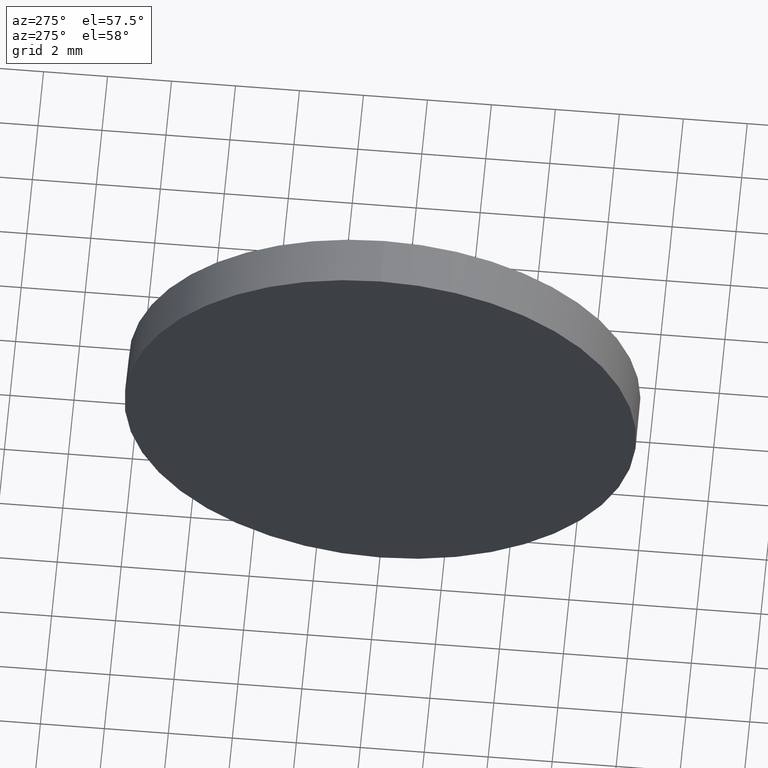
[diagram: clean part render]
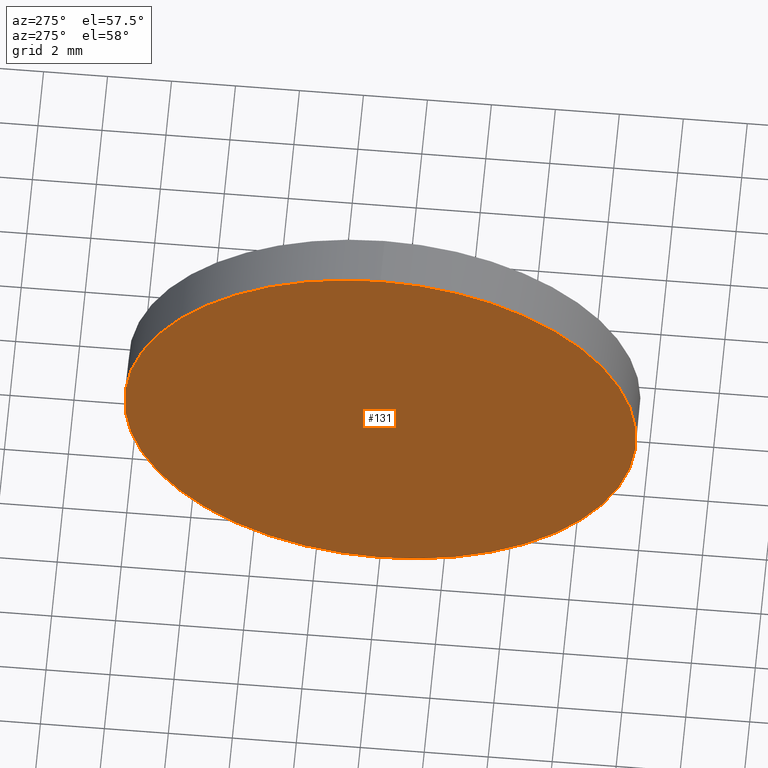
[diagram: same view with one face highlighted and labeled with its STEP entity id]
A machine part, auxiliary view. The second image highlights one B-rep face of the part: STEP entity #131.
In plain terms, the highlighted planar face has unit normal (1, 0, 0).
Its self-contained STEP definition (entity closure, byte-faithful):
#1 = AXIS2_PLACEMENT_3D ( 'NONE', #50, #64, #15 ) ;
#5 = DIRECTION ( 'NONE',  ( 0.0000000000000000000, 0.0000000000000000000, 1.000000000000000000 ) ) ;
#14 = CARTESIAN_POINT ( 'NONE',  ( 608.8264614584882100, 205.9704387826813600, -7.999999999999979600 ) ) ;
#15 = DIRECTION ( 'NONE',  ( 0.0000000000000000000, 0.0000000000000000000, 1.000000000000000000 ) ) ;
#28 = CIRCLE ( 'NONE', #107, 7.999999999999979600 ) ;
#30 = VERTEX_POINT ( 'NONE', #14 ) ;
#34 = AXIS2_PLACEMENT_3D ( 'NONE', #148, #138, #65 ) ;
#50 = CARTESIAN_POINT ( 'NONE',  ( 608.8264614584882100, 205.9704387826813600, 0.0000000000000000000 ) ) ;
#52 = PLANE ( 'NONE',  #34 ) ;
#55 = ORIENTED_EDGE ( 'NONE', *, *, #186, .T. ) ;
#64 = DIRECTION ( 'NONE',  ( -1.000000000000000000, -0.0000000000000000000, -0.0000000000000000000 ) ) ;
#65 = DIRECTION ( 'NONE',  ( 0.0000000000000000000, 0.0000000000000000000, -1.000000000000000000 ) ) ;
#82 = EDGE_CURVE ( 'NONE', #30, #162, #139, .T. ) ;
#95 = DIRECTION ( 'NONE',  ( -1.000000000000000000, -0.0000000000000000000, -0.0000000000000000000 ) ) ;
#106 = FACE_OUTER_BOUND ( 'NONE', #167, .T. ) ;
#107 = AXIS2_PLACEMENT_3D ( 'NONE', #127, #95, #5 ) ;
#127 = CARTESIAN_POINT ( 'NONE',  ( 608.8264614584882100, 205.9704387826813600, 0.0000000000000000000 ) ) ;
#131 = ADVANCED_FACE ( 'NONE', ( #106 ), #52, .F. ) ;
#138 = DIRECTION ( 'NONE',  ( 1.000000000000000000, 0.0000000000000000000, 0.0000000000000000000 ) ) ;
#139 = CIRCLE ( 'NONE', #1, 7.999999999999979600 ) ;
#148 = CARTESIAN_POINT ( 'NONE',  ( 608.8264614584882100, 205.9704387826813600, 0.0000000000000000000 ) ) ;
#162 = VERTEX_POINT ( 'NONE', #178 ) ;
#167 = EDGE_LOOP ( 'NONE', ( #55, #175 ) ) ;
#175 = ORIENTED_EDGE ( 'NONE', *, *, #82, .T. ) ;
#178 = CARTESIAN_POINT ( 'NONE',  ( 608.8264614584882100, 205.9704387826813600, 7.999999999999979600 ) ) ;
#186 = EDGE_CURVE ( 'NONE', #162, #30, #28, .T. ) ;